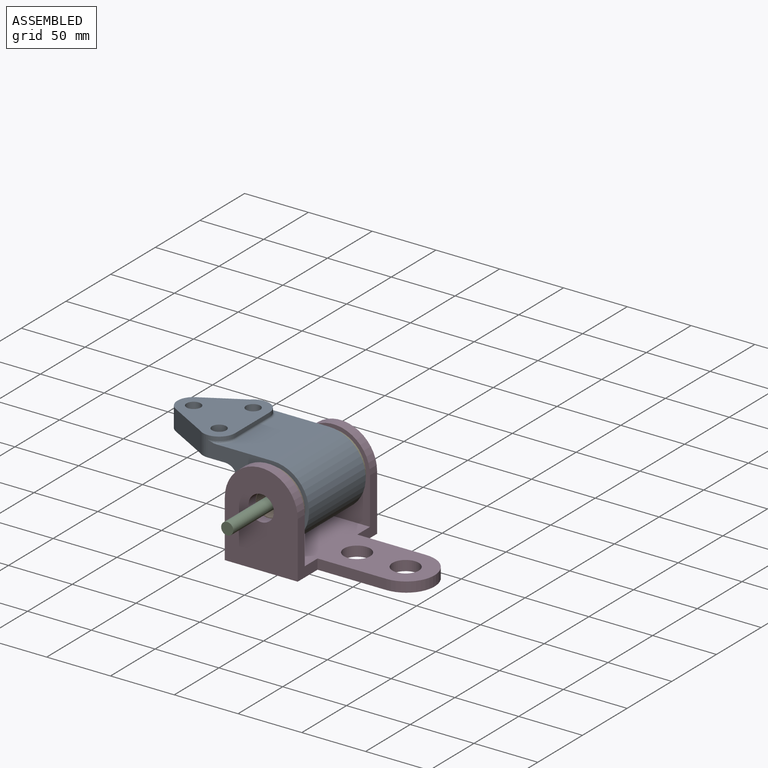
[diagram: assembled view]
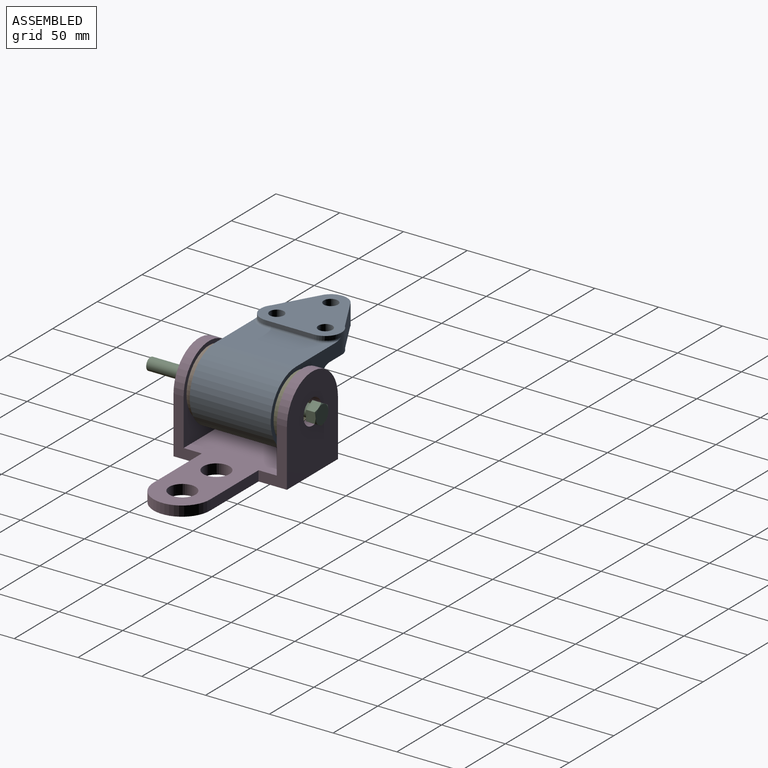
[diagram: assembled view, second angle]
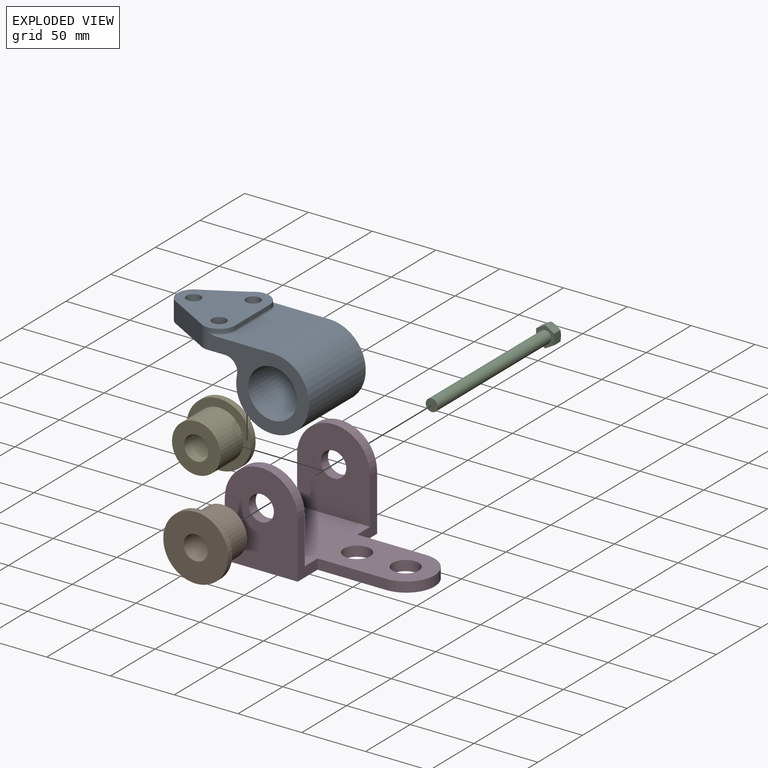
[diagram: exploded view]
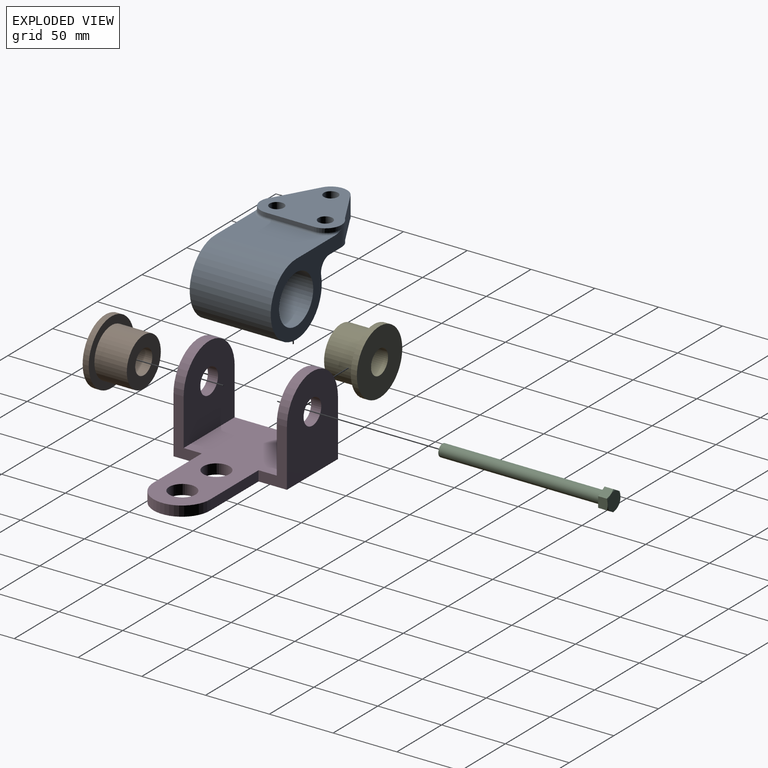
[diagram: exploded view, second angle]
ASSEMBLY  parts=5 mates=4
PART A: 20 faces, bbox 125.4x71.5x61.9 mm
  f0: plane 63.5x58.74mm, normal (0,0,1), area 2296.9mm2, adj f1,f9,f10,f11,f12,f13,f14,f15
  f1: plane 38.1x3.18mm, normal (1,0,0), area 121mm2, adj f0,f9,f12,f18
  f2: plane 63.5x59.57mm, normal (0,0,-1), area 2419.2mm2, adj f3,f7,f8,f9,f10,f11,f12,f13
  f3: cylinder r=9.53mm len=63.5mm, axis (0,1,0), area 1077mm2, adj f2,f4,f7,f8
  f4: cylinder r=28.57mm len=63.5mm, axis (0,1,0), area 8931.5mm2, adj f3,f5,f7,f8
  f5: plane 63.5x44.25mm, normal (0,0,1), area 2374.8mm2, adj f4,f7,f8,f17,f18,f19
  f6: cylinder r=19.05mm len=63.5mm, axis (0,1,0), area 7600.6mm2, adj f7,f8
  f7: plane 79.38x58.74mm, normal (0,-1,0), area 1860mm2, adj f2,f3,f4,f5,f6,f12,f17
  f8: plane 79.38x58.74mm, normal (0,1,0), area 1860mm2, adj f2,f3,f4,f5,f6,f9,f19
  f9: cylinder r=12.7mm len=21.62mm, axis (0,0,1), area 220.3mm2, adj f0,f1,f2,f8,f11,f19
  f10: cylinder r=12.7mm len=23.09mm, axis (0,0,1), area 461.4mm2, adj f0,f2,f11,f13
  f11: plane 29.06x16.27mm, normal (-0.49,0.87,0), area 528.6mm2, adj f0,f2,f9,f10
  f12: cylinder r=12.7mm len=20.68mm, axis (0,0,1), area 200.3mm2, adj f0,f1,f2,f7,f13,f17
  f13: plane 31.22x17.66mm, normal (-0.49,-0.87,0), area 569.4mm2, adj f0,f2,f10,f12
  f14: cylinder r=5.56mm len=15.88mm, axis (0,0,1), area 554.2mm2, adj f0,f2
  f15: cylinder r=5.56mm len=15.88mm, axis (0,0,1), area 554.2mm2, adj f0,f2
  f16: cylinder r=5.56mm len=15.88mm, axis (0,0,1), area 554.2mm2, adj f0,f2
  f17: torus R=14.29mm, axis (0,0,-1), area 43.3mm2, adj f5,f7,f12,f18
  f18: cylinder r=1.59mm len=38.1mm, axis (0,1,0), area 95mm2, adj f1,f5,f17,f19
  f19: torus R=14.29mm, axis (0,0,-1), area 43.3mm2, adj f5,f8,f9,f18
PART B: 6 faces, bbox 50.8x30.2x50.8 mm
  f0: cylinder r=9.53mm len=30.16mm, axis (0,-1,0), area 1805.1mm2, adj f2,f4
  f1: cylinder r=19.05mm len=38.1mm, axis (0,-1,0), area 3040.2mm2, adj f2,f5
  f2: plane 38.1x38.1mm, normal (0,1,0), area 855.1mm2, adj f0,f1
  f3: cylinder r=25.4mm len=50.8mm, axis (0,1,0), area 760.1mm2, adj f4,f5
  f4: plane 50.8x50.8mm, normal (0,-1,0), area 1741.8mm2, adj f0,f3
  f5: plane 50.8x50.8mm, normal (0,1,0), area 886.7mm2, adj f1,f3
PART C: 16 faces, bbox 17.2x17.2x135.2 mm
  f0: cylinder r=4.76mm len=127mm, axis (0,0,-1), area 3800.3mm2, adj f1,f2
  f1: plane 9.53x9.53mm, normal (0,0,-1), area 71.3mm2, adj f0
  f2: plane 16.48x14.28mm, normal (0,0,-1), area 105.2mm2, adj f0,f3,f4,f5,f6,f7,f8
  f3: plane 8.18x7.81mm, normal (-0.5,0.87,0), area 60mm2, adj f2,f4,f8,f12,f13
  f4: plane 8.93x8.17mm, normal (-1,0,0), area 60mm2, adj f2,f3,f5,f11,f12
  f5: plane 8.18x7.81mm, normal (-0.5,-0.87,0), area 60mm2, adj f2,f4,f6,f10,f11
  f6: plane 8.18x7.81mm, normal (0.5,-0.87,0), area 60mm2, adj f2,f5,f7,f9,f10
  f7: plane 8.93x8.17mm, normal (1,0,0), area 60mm2, adj f2,f6,f8,f9,f14
  f8: plane 8.18x7.81mm, normal (0.5,0.87,0), area 60mm2, adj f2,f3,f7,f13,f14
  f9: cone r=7.14mm half-angle=60deg, axis (0,0,-1), area 5mm2, adj f6,f7,f15
  f10: cone r=7.14mm half-angle=60deg, axis (0,0,-1), area 5mm2, adj f5,f6,f15
  f11: cone r=7.14mm half-angle=60deg, axis (0,0,-1), area 5mm2, adj f4,f5,f15
  f12: cone r=7.14mm half-angle=60deg, axis (0,0,-1), area 5mm2, adj f3,f4,f15
  f13: cone r=7.14mm half-angle=60deg, axis (0,0,-1), area 5mm2, adj f3,f8,f15
  f14: cone r=7.14mm half-angle=60deg, axis (0,0,-1), area 5mm2, adj f7,f8,f15
  f15: plane 14.28x14.28mm, normal (0,0,1), area 160mm2, adj f9,f10,f11,f12,f13,f14
PART D: 18 faces, bbox 133.4x88.9x73 mm
  f0: plane 44.45x22.23mm, normal (1,0,0), area 466.2mm2, adj f2,f3,f4,f5,f9,f12
  f1: plane 73.03x57.15mm, normal (0,-1,0), area 3513.7mm2, adj f2,f7,f8,f13,f14
  f2: plane 133.35x88.9mm, normal (0,0,-1), area 7586.7mm2, adj f0,f1,f3,f7,f8,f9,f10,f11
  f3: plane 73.03x57.15mm, normal (0,1,0), area 3513.7mm2, adj f0,f2,f8,f12,f15
  f4: plane 65.09x57.15mm, normal (0,-1,0), area 3060mm2, adj f0,f5,f8,f12,f15
  f5: plane 133.35x73.03mm, normal (0,0,1), area 6679.5mm2, adj f0,f4,f6,f7,f8,f9,f10,f11
  f6: plane 65.09x57.15mm, normal (0,1,0), area 3060mm2, adj f5,f7,f8,f13,f14
  f7: plane 44.45x22.22mm, normal (1,0,0), area 466.2mm2, adj f1,f2,f5,f6,f10,f13
  f8: plane 88.9x44.45mm, normal (-1,0,0), area 1285.3mm2, adj f1,f2,f3,f4,f5,f6,f12,f13
  f9: plane 53.98x7.94mm, normal (0,1,0), area 428.4mm2, adj f0,f2,f5,f11
  f10: plane 53.98x7.94mm, normal (0,-1,0), area 428.4mm2, adj f2,f5,f7,f11
  f11: cylinder r=22.23mm len=44.45mm, axis (0,0,-1), area 554.2mm2, adj f2,f5,f9,f10
  f12: cylinder r=28.57mm len=57.15mm, axis (0,1,0), area 712.6mm2, adj f0,f3,f4,f8
  f13: cylinder r=28.57mm len=57.15mm, axis (0,1,0), area 712.6mm2, adj f1,f6,f7,f8
  f14: cylinder r=9.92mm len=19.84mm, axis (0,-1,0), area 494.8mm2, adj f1,f6
  f15: cylinder r=9.92mm len=19.84mm, axis (0,-1,0), area 494.8mm2, adj f3,f4
  f16: cylinder r=10.32mm len=20.64mm, axis (0,0,1), area 514.6mm2, adj f2,f5
  f17: cylinder r=10.32mm len=20.64mm, axis (0,0,1), area 514.6mm2, adj f2,f5
PART E: 6 faces, bbox 50.8x30.2x50.8 mm
  f0: cylinder r=9.53mm len=30.16mm, axis (0,1,0), area 1805.1mm2, adj f2,f4
  f1: cylinder r=19.05mm len=38.1mm, axis (0,1,0), area 3040.2mm2, adj f2,f5
  f2: plane 38.1x38.1mm, normal (0,-1,0), area 855.1mm2, adj f0,f1
  f3: cylinder r=25.4mm len=50.8mm, axis (0,-1,0), area 760.1mm2, adj f4,f5
  f4: plane 50.8x50.8mm, normal (0,1,0), area 1741.8mm2, adj f0,f3
  f5: plane 50.8x50.8mm, normal (0,-1,0), area 886.7mm2, adj f1,f3
PLACE A t=(-107.52,-75.98,31.86)mm
PLACE B t=(-107.52,-31.53,31.86)mm
PLACE C rot(axis=(-1,0,0),90deg) t=(-107.52,-158.53,31.86)mm
PLACE D t=(-136.09,-75.98,31.86)mm
PLACE E t=(-107.52,-120.43,31.86)mm
MATE revolute C.f0 <-> D.f12  axis (0,-1,0) through (-107.52,-31.53,31.86)mm
MATE revolute D.f12 <-> E.f0  axis (0,-1,0) through (-107.52,-39.47,31.86)mm
MATE revolute B.f0 <-> A.f4  axis (0,1,0) through (-107.52,-107.73,31.86)mm
MATE revolute E.f0 <-> A.f4  axis (0,-1,0) through (-107.52,-44.23,31.86)mm
